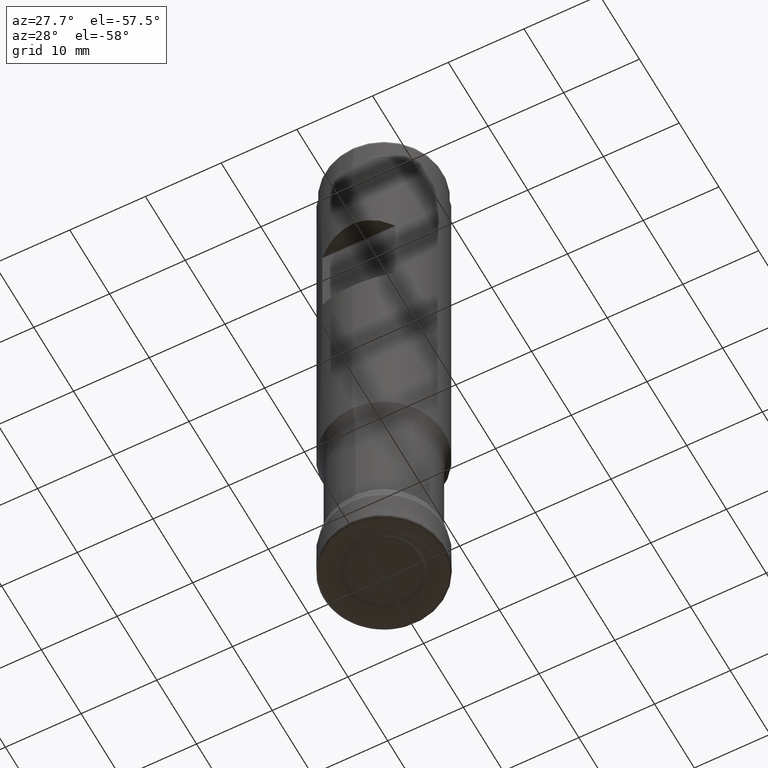
[diagram: clean part render]
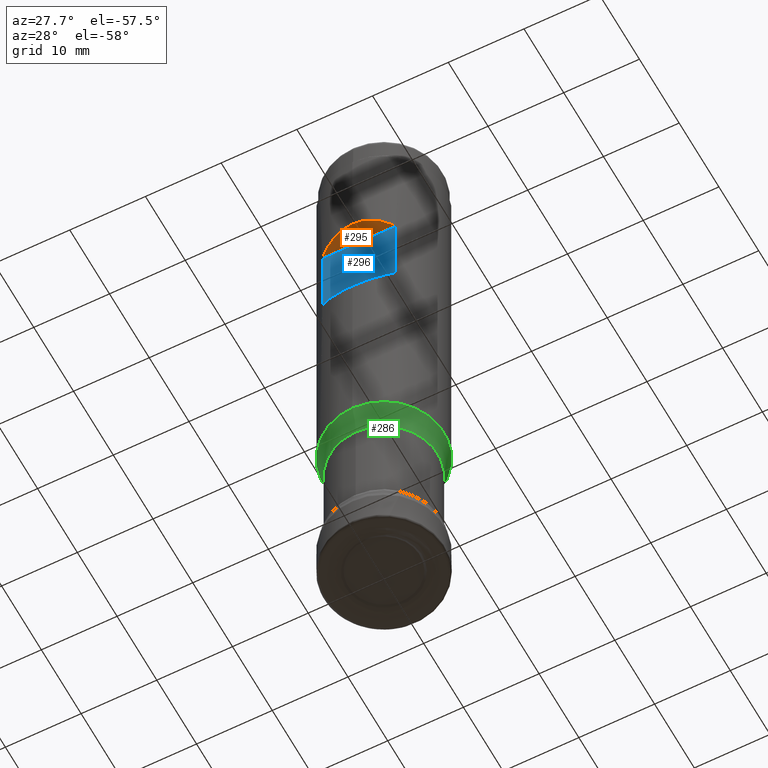
[diagram: same view with three faces highlighted in distinct colors, each labeled with its STEP entity id]
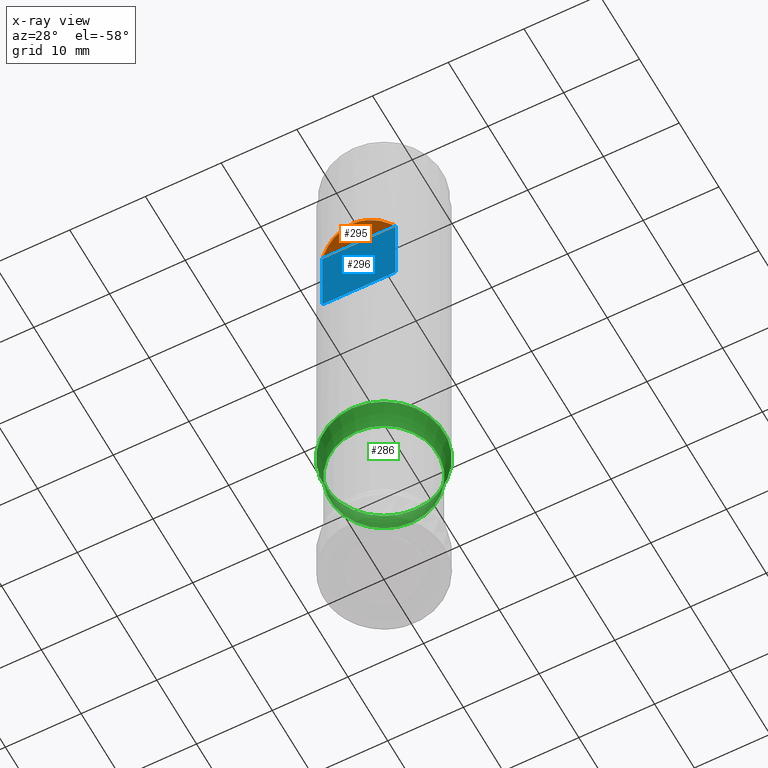
[diagram: x-ray of the same camera — body ghosted, the three highlighted faces saturated]
A machine part, auxiliary view with three faces highlighted in distinct colors.
The next image is the same camera in x-ray (body ghosted, the three faces saturated) — at least one of them is partly hidden behind the body in this view.
Their STEP definitions:

[orange] entity #295 — the highlighted planar face has unit normal (0, 0.7071, 0.7071).
#162=LINE('',#1260,#174);
#174=VECTOR('',#845,1.);
#184=ELLIPSE('',#712,11.2253201513365,7.9375);
#295=ADVANCED_FACE('',(#328),#324,.F.);
#324=PLANE('',#737);
#328=FACE_OUTER_BOUND('',#370,.T.);
#370=EDGE_LOOP('',(#461,#462));
#461=ORIENTED_EDGE('',*,*,#577,.T.);
#462=ORIENTED_EDGE('',*,*,#593,.T.);
#528=VERTEX_POINT('',#1182);
#530=VERTEX_POINT('',#1185);
#577=EDGE_CURVE('',#530,#528,#184,.T.);
#593=EDGE_CURVE('',#528,#530,#162,.T.);
#712=AXIS2_PLACEMENT_3D('',#1184,#793,#794);
#737=AXIS2_PLACEMENT_3D('',#1261,#846,#847);
#793=DIRECTION('',(-8.28344032153661E-16,-0.707106781186549,-0.707106781186546));
#794=DIRECTION('',(-8.28344032153658E-16,-0.707106781186546,0.707106781186549));
#845=DIRECTION('',(1.,-1.37230767120917E-30,-1.17145536458252E-15));
#846=DIRECTION('',(8.28344032153661E-16,0.707106781186549,0.707106781186546));
#847=DIRECTION('',(-8.29197821516914E-16,0.707106781186546,-0.707106781186549));
#1182=CARTESIAN_POINT('',(-4.72983501705622,-6.37436796564396,63.5211929656441));
#1184=CARTESIAN_POINT('',(0.,6.69449547151087E-14,57.146825));
#1185=CARTESIAN_POINT('',(4.72983501705622,-6.37436796564396,63.5211929656441));
#1260=CARTESIAN_POINT('',(19.,-6.37436796564396,63.521192965644));
#1261=CARTESIAN_POINT('',(19.,-8.78649999999992,65.933325));

[blue] entity #296 — the highlighted planar face has unit normal (-0, 1, -0).
#160=LINE('',#1197,#172);
#161=LINE('',#1226,#173);
#163=LINE('',#1262,#175);
#164=LINE('',#1263,#176);
#172=VECTOR('',#795,1.);
#173=VECTOR('',#798,1.);
#175=VECTOR('',#848,1.);
#176=VECTOR('',#849,1.);
#296=ADVANCED_FACE('',(#329),#325,.F.);
#325=PLANE('',#738);
#329=FACE_OUTER_BOUND('',#371,.T.);
#371=EDGE_LOOP('',(#463,#464,#465,#466));
#463=ORIENTED_EDGE('',*,*,#583,.T.);
#464=ORIENTED_EDGE('',*,*,#594,.T.);
#465=ORIENTED_EDGE('',*,*,#579,.T.);
#466=ORIENTED_EDGE('',*,*,#595,.T.);
#529=VERTEX_POINT('',#1183);
#531=VERTEX_POINT('',#1196);
#532=VERTEX_POINT('',#1198);
#535=VERTEX_POINT('',#1225);
#579=EDGE_CURVE('',#532,#531,#160,.T.);
#583=EDGE_CURVE('',#529,#535,#161,.T.);
#594=EDGE_CURVE('',#535,#532,#163,.T.);
#595=EDGE_CURVE('',#531,#529,#164,.T.);
#738=AXIS2_PLACEMENT_3D('',#1264,#850,#851);
#795=DIRECTION('',(0.,1.17145536458252E-15,1.));
#798=DIRECTION('',(0.,-1.17145536458252E-15,-1.));
#848=DIRECTION('',(1.,-1.37230767120917E-30,-1.17145536458252E-15));
#849=DIRECTION('',(-1.,1.37230767120917E-30,1.17145536458252E-15));
#850=DIRECTION('',(-1.99516084002619E-31,1.,-1.34177007740449E-15));
#851=DIRECTION('',(-1.17267306976032E-15,-1.34180860866806E-15,-1.));
#1183=CARTESIAN_POINT('',(-4.84601114319809,-6.28649999999992,63.3090609312881));
#1196=CARTESIAN_POINT('',(4.84601114319809,-6.28649999999992,63.3090609312881));
#1197=CARTESIAN_POINT('',(4.84601114319807,-6.28650000000001,8.43503759160331E-15));
#1198=CARTESIAN_POINT('',(4.84601114319809,-6.28649999999994,53.3721890687119));
#1225=CARTESIAN_POINT('',(-4.84601114319809,-6.28649999999994,53.3721890687119));
#1226=CARTESIAN_POINT('',(-4.84601114319807,-6.28650000000001,8.43503759160331E-15));
#1262=CARTESIAN_POINT('',(19.,-6.28649999999994,53.3721890687119));
#1263=CARTESIAN_POINT('',(19.,-6.28649999999992,63.3090609312881));
#1264=CARTESIAN_POINT('',(19.,-6.28649999999992,63.433325));

[green] entity #286 — the highlighted toroidal blend (fillet) surface has major radius 17.1 mm and minor (blend) radius 10 mm.
#154=TOROIDAL_SURFACE('',#725,17.1,10.);
#216=FACE_BOUND('',#353,.T.);
#217=FACE_BOUND('',#354,.T.);
#286=ADVANCED_FACE('',(#216,#217),#154,.F.);
#353=EDGE_LOOP('',(#444));
#354=EDGE_LOOP('',(#445));
#444=ORIENTED_EDGE('',*,*,#575,.F.);
#445=ORIENTED_EDGE('',*,*,#584,.F.);
#527=VERTEX_POINT('',#1167);
#536=VERTEX_POINT('',#1228);
#575=EDGE_CURVE('',#527,#527,#626,.T.);
#584=EDGE_CURVE('',#536,#536,#627,.T.);
#626=CIRCLE('',#710,7.1);
#627=CIRCLE('',#714,7.9375);
#710=AXIS2_PLACEMENT_3D('',#1166,#789,#790);
#714=AXIS2_PLACEMENT_3D('',#1227,#799,#800);
#725=AXIS2_PLACEMENT_3D('',#1244,#821,#822);
#789=DIRECTION('',(0.,-1.17145536458252E-15,-1.));
#790=DIRECTION('',(0.,-1.,9.77309000550314E-16));
#799=DIRECTION('',(0.,1.17145536458252E-15,1.));
#800=DIRECTION('',(0.,-1.,1.31128703695885E-15));
#821=DIRECTION('',(0.,1.17145536458252E-15,1.));
#822=DIRECTION('',(0.,-1.,1.15221485489234E-15));
#1166=CARTESIAN_POINT('',(0.,2.45859550603422E-14,20.9875303862763));
#1167=CARTESIAN_POINT('',(0.,-7.09999999999998,20.9875303862763));
#1227=CARTESIAN_POINT('',(0.,2.92788868002298E-14,24.9936));
#1228=CARTESIAN_POINT('',(0.,-7.93749999999997,24.9936));
#1244=CARTESIAN_POINT('',(0.,2.45859550603422E-14,20.9875303862763));